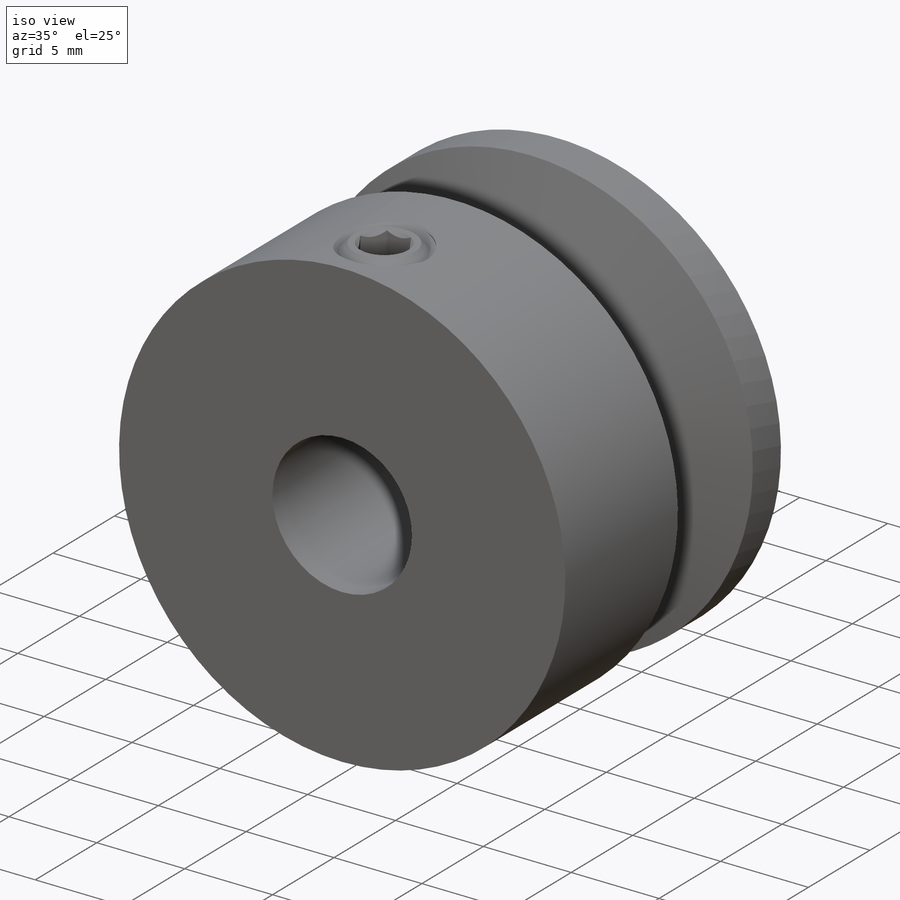
[diagram: iso view]
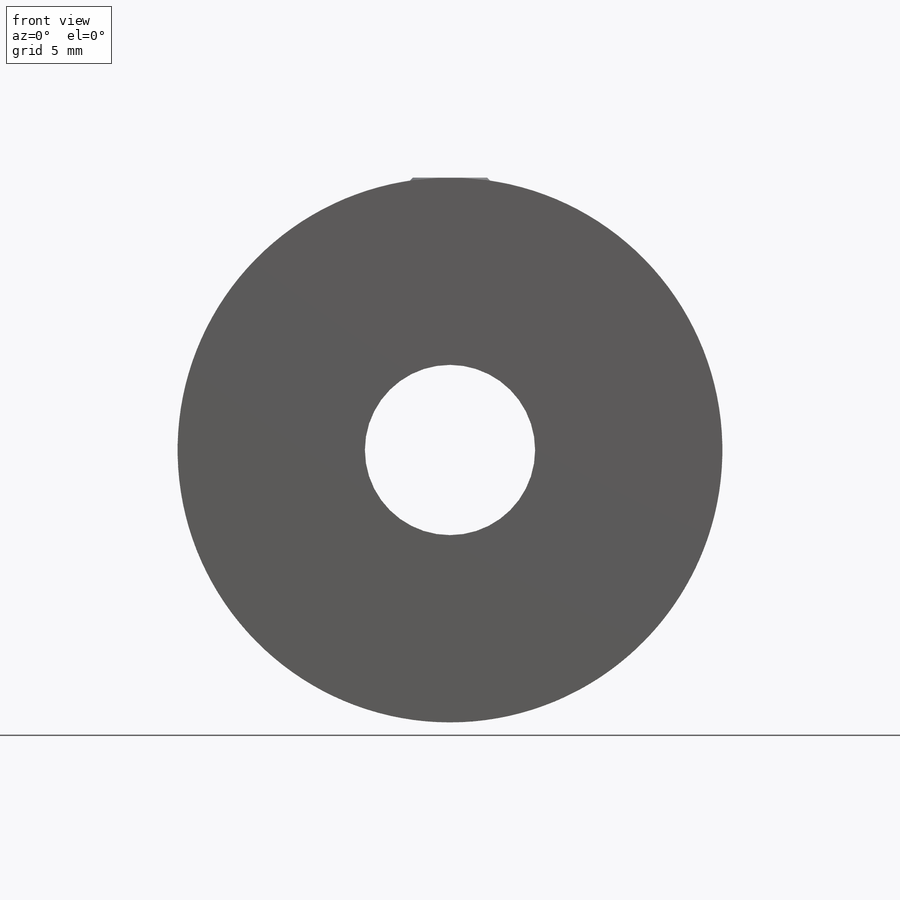
[diagram: front view]
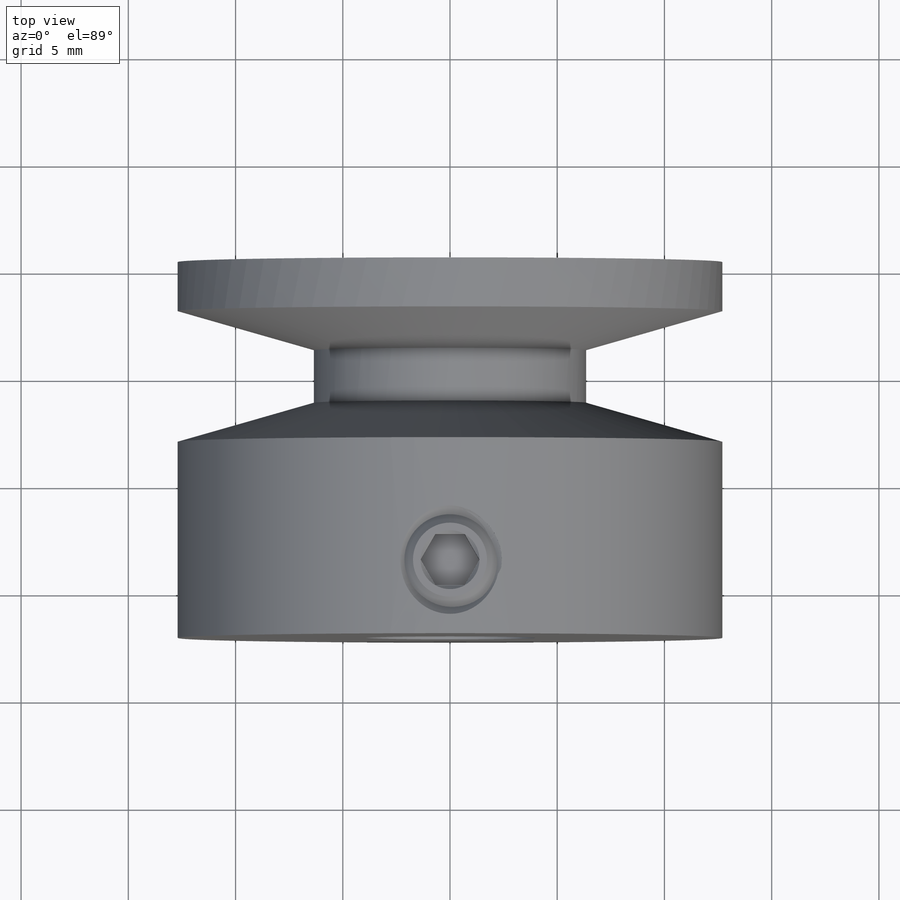
[diagram: top view]
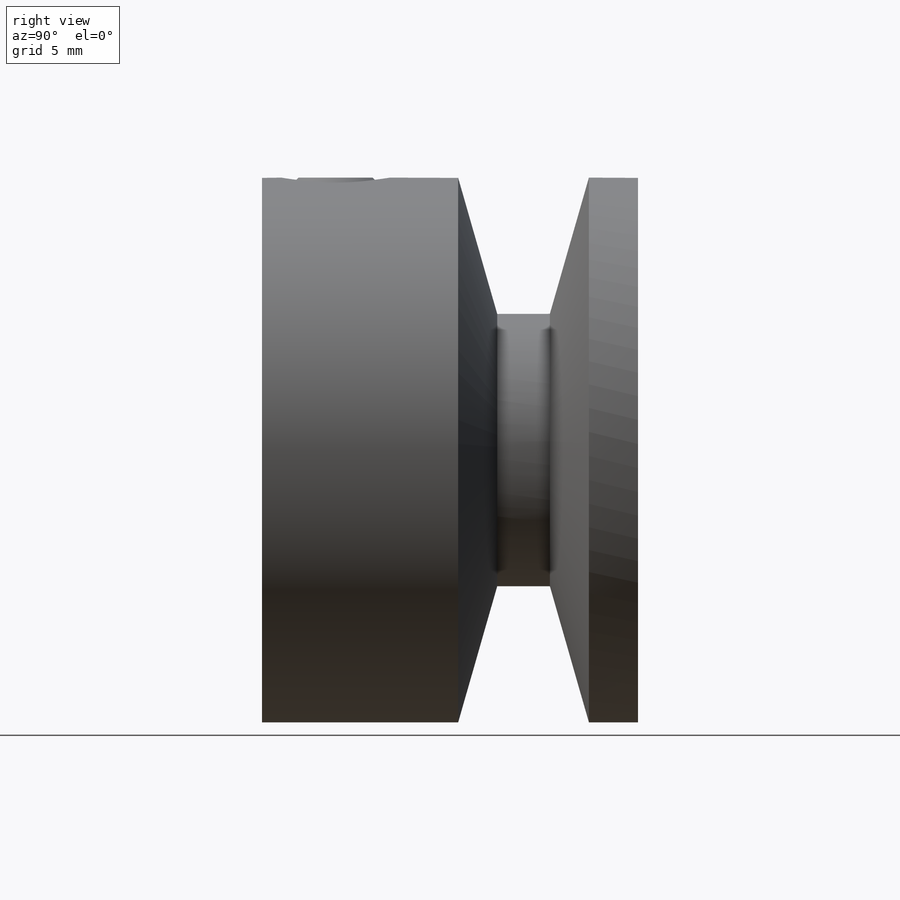
[diagram: right view]
SOLIDWORKS PART (.sldprt)
format: sldprt  version: not decoded by parser v0  size: 625,152 bytes
history: native  units: mm
features: sketch x9, cut_extrude x5, revolve x2, material x1, plane x1, helix x1, sweep x1 (+15 scaffold rows collapsed)
feature tree (35):
  scaffold x15  (default folders/planes/origin — collapsed)
  material  "Material <not specified>"
  sketch  "Sketch1"  dims[c1.Max. Cable Size=9.525mm c1.R=4.826mm c1.A=34.925mm c1.B=36.5125mm c1.C=12.7mm c1.D=28.575mm c2.C=9.652mm c2.G=38.1mm c2.I=3.175mm c2.D1=~6.793059mm c3.D1=~87.533008deg c4.D1=~6.793059mm c5.D1=~87.533008deg c5.F=0.0mm c5.A=34.925mm c5.B=94.996mm c5.C=6.35mm c6.D1=~3.95732mm c6.C=25.4mm c6.OD=25.4mm c6.D=21.844mm c6.D2=~7.068588mm c6.D3=90.0deg c6.I=6.35mm c7.D2=9.525mm c7.D3=19.05mm c7.I=3.175mm c7.D4=11.1125mm c7.F=1.5875mm c7.Bore=7.9375mm c7.E=19.558mm c7.B=50.8mm c7.C=12.7mm c7.D=17.78mm c8.E=20.574mm c8.D1=~7.680728mm c9.D1=30.0deg c9.D2=3.175mm c9.D3=15.875mm c9.D4=40.0mm c9.D5=12.0mm c9.B=12.7mm c9.Belt Width=6.35mm c9.Belt Heigth=7.9375mm c10.Belt Heigth=3.175mm c10.D1=7.9375mm c10.A=32.0deg c10.D3=~1.086108mm c11.D3=130.0deg c11.Groove Dp.=6.35mm c11.Width=17.526mm c11.X=8.382mm c11.OD=25.4mm c11.PD=22.86mm c11.W=6.096mm c12.PD=22.86mm c12.Depth=6.35mm c12.D2=6.35mm c12.A=32.0deg c12.D1=6.858mm c13.D2=8.382mm c13.D3=7.239mm c13.D4=16.0deg c14.D4=7.239mm c14.D3=7.239mm c14.X=8.382mm c14.D2=6.858mm c14.D1=9.144mm]
  revolve  "Revolve1"  Angle=360deg
  sketch  "Sketch2"
  cut_extrude  "Cut-Extrude1"  [1 undecoded]
  plane  "Plane1"
  sketch  "Sketch3"  dims[c1.D1=4.826mm c1.D2=~3.387071mm c1.D3=~3.503083mm c2.D2=~0.661458mm c2.D3=~1.225113mm c3.D2=~1.058333mm c3.D3=~0.661458mm]
  cut_extrude  "Cut-Extrude2"  [1 undecoded]
  sketch  "Sketch4"
  helix  "Helix/Spiral1"  Pitch=13.758333mm
  sketch  "Sketch5"  dims[D1=~1.058333mm D2=~0.132292mm]
  sweep  "Cut-Sweep1"
  sketch  "Sketch6"
  cut_extrude  "Cut-Extrude3"  [1 undecoded]
  sketch  "Sketch7"  dims[D1=6.35mm]
  revolve  "Revolve2"  Angle=360deg
  sketch  "Sketch8"  dims[D1=~2.38125mm]
  cut_extrude  "Cut-Extrude4"  Depth=1.488281mm
  sketch  "Sketch9"
  cut_extrude  "Cut-Extrude5"  [1 undecoded]
decode coverage: 9 of 18 modeling features carry decoded parameters
note: ~ marks probable driven/reference dimensions
note: 4 parameter values undecoded
summary: no parameter record found for 4 features
note: suppression state not decoded; provenance and decode notes live in map.json
